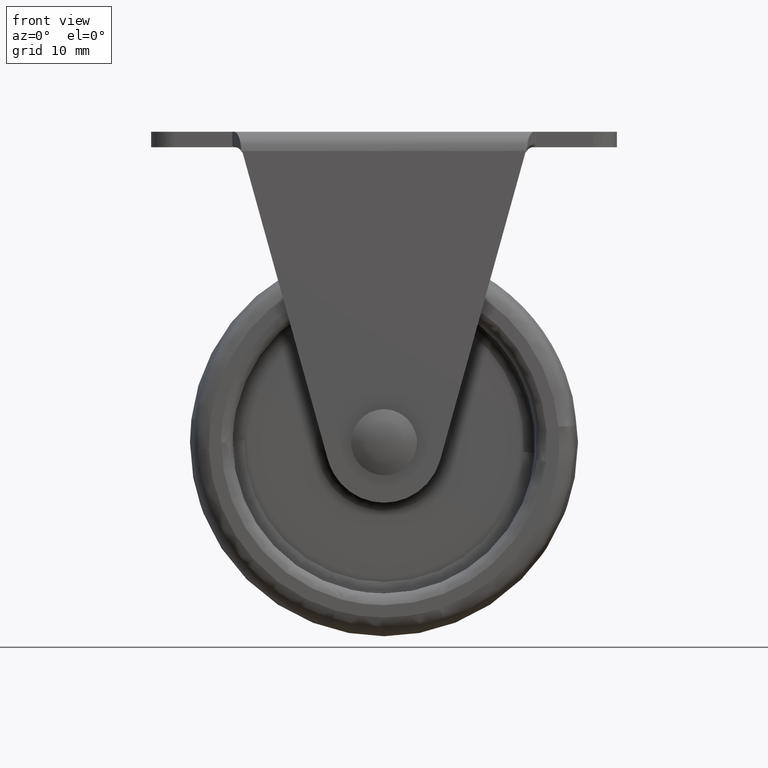
[diagram: clean part render]
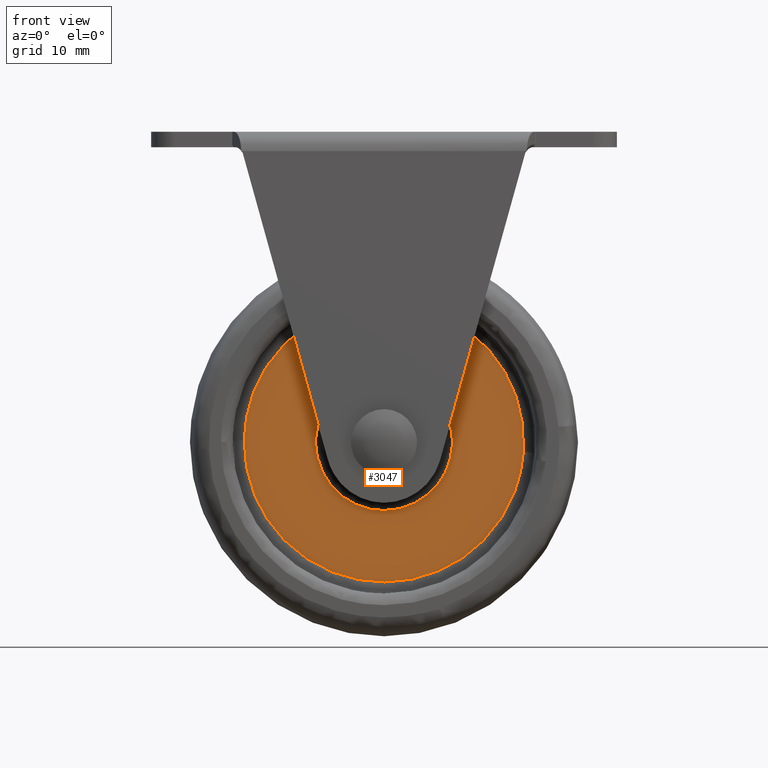
[diagram: same view with one face highlighted and labeled with its STEP entity id]
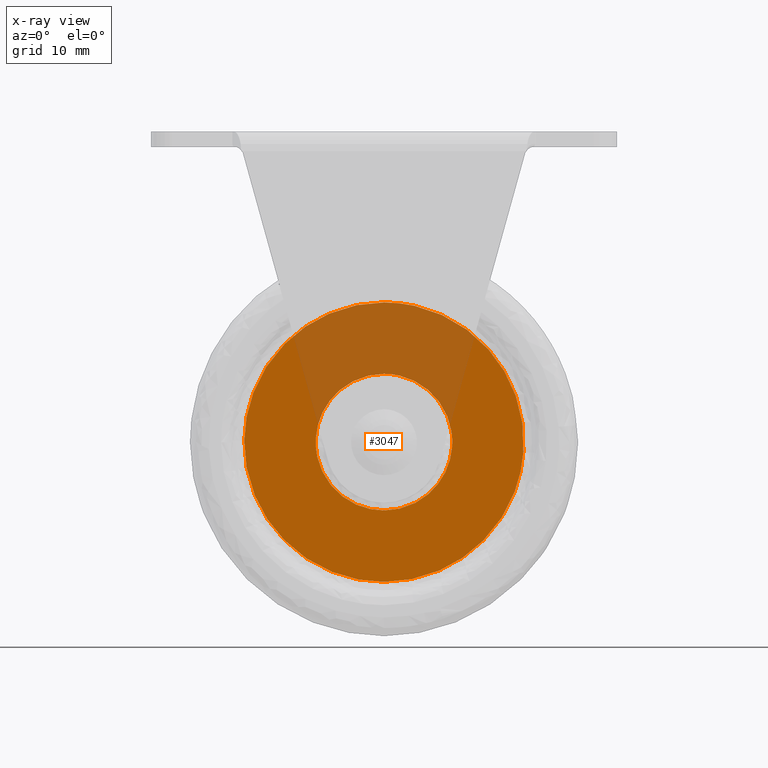
[diagram: x-ray of the same camera — body ghosted, the highlighted face saturated]
A machine part, front view. The second image highlights one B-rep face of the part: STEP entity #3047.
The next image is the same camera in x-ray: the body ghosted, the highlighted face saturated — about 28% of this face is hidden behind the body in this view.
In plain terms, the highlighted face is a freeform B-spline surface patch.
Its self-contained STEP definition (entity closure, byte-faithful):
#1392=CARTESIAN_POINT('',(-8.588241619073845,-3.0,-41.925785743784587));
#1393=VERTEX_POINT('',#1392);
#1407=CARTESIAN_POINT('',(0.0,-3.0,-48.801508102108151));
#1408=VERTEX_POINT('',#1407);
#1409=CARTESIAN_POINT('',(-8.588241619073845,-3.000000000000000,-41.925785743784601));
#1410=CARTESIAN_POINT('',(-7.046462909473995,-3.000000000000000,-48.801508102108137));
#1411=CARTESIAN_POINT('',(0.0,-3.0,-48.801508102108151));
#1419=(BOUNDED_CURVE()B_SPLINE_CURVE(2,(#1409,#1410,#1411),.UNSPECIFIED.,.F.,.U.)B_SPLINE_CURVE_WITH_KNOTS((3,3),(0.787436176732207,1.0),.UNSPECIFIED.)CURVE()GEOMETRIC_REPRESENTATION_ITEM()RATIONAL_B_SPLINE_CURVE((0.925416950434038,0.750965990399209,1.0))REPRESENTATION_ITEM(''));
#1420=EDGE_CURVE('',#1393,#1408,#1419,.T.);
#1422=CARTESIAN_POINT('',(8.684324331349085,-3.0,-38.568547672826973));
#1423=VERTEX_POINT('',#1422);
#1424=CARTESIAN_POINT('',(0.0,-3.0,-48.801508102108151));
#1425=CARTESIAN_POINT('',(8.801508102108150,-3.0,-48.801508102108144));
#1426=CARTESIAN_POINT('',(8.801508102108150,-3.0,-40.0));
#1427=CARTESIAN_POINT('',(8.801508102108150,-3.000000000000000,-39.279477296538268));
#1428=CARTESIAN_POINT('',(8.684324331349085,-3.000000000000000,-38.568547672826966));
#1436=(BOUNDED_CURVE()B_SPLINE_CURVE(2,(#1424,#1425,#1426,#1427,#1428),.UNSPECIFIED.,.F.,.U.)B_SPLINE_CURVE_WITH_KNOTS((3,2,3),(0.0,0.250000000000000,0.277993891205872),.UNSPECIFIED.)CURVE()GEOMETRIC_REPRESENTATION_ITEM()RATIONAL_B_SPLINE_CURVE((1.0,0.707106781186548,1.0,0.967203116390394,0.941751131914060))REPRESENTATION_ITEM(''));
#1437=EDGE_CURVE('',#1408,#1423,#1436,.T.);
#1489=CARTESIAN_POINT('',(0.0,-3.0,-31.198491897891849));
#1490=VERTEX_POINT('',#1489);
#1491=CARTESIAN_POINT('',(8.684324331349085,-3.000000000000000,-38.568547672826966));
#1492=CARTESIAN_POINT('',(7.469505183453082,-3.000000000000001,-31.198491897891849));
#1493=CARTESIAN_POINT('',(0.0,-3.0,-31.198491897891849));
#1501=(BOUNDED_CURVE()B_SPLINE_CURVE(2,(#1491,#1492,#1493),.UNSPECIFIED.,.F.,.U.)B_SPLINE_CURVE_WITH_KNOTS((3,3),(0.277993891205872,0.500000000000000),.UNSPECIFIED.)CURVE()GEOMETRIC_REPRESENTATION_ITEM()RATIONAL_B_SPLINE_CURVE((0.941751131914060,0.739903664796153,1.0))REPRESENTATION_ITEM(''));
#1502=EDGE_CURVE('',#1423,#1490,#1501,.T.);
#1504=CARTESIAN_POINT('',(0.0,-3.0,-31.198491897891849));
#1505=CARTESIAN_POINT('',(-8.801508102108150,-3.0,-31.198491897891849));
#1506=CARTESIAN_POINT('',(-8.801508102108150,-3.0,-40.0));
#1507=CARTESIAN_POINT('',(-8.801508102108151,-3.000000000000000,-40.974701712367263));
#1508=CARTESIAN_POINT('',(-8.588241619073845,-3.000000000000000,-41.925785743784594));
#1516=(BOUNDED_CURVE()B_SPLINE_CURVE(2,(#1504,#1505,#1506,#1507,#1508),.UNSPECIFIED.,.F.,.U.)B_SPLINE_CURVE_WITH_KNOTS((3,2,3),(0.500000000000000,0.750000000000000,0.787436176732208),.UNSPECIFIED.)CURVE()GEOMETRIC_REPRESENTATION_ITEM()RATIONAL_B_SPLINE_CURVE((1.0,0.707106781186548,1.0,0.956140790787338,0.925416950434036))REPRESENTATION_ITEM(''));
#1517=EDGE_CURVE('',#1490,#1393,#1516,.T.);
#1553=CARTESIAN_POINT('',(17.956182133700640,-3.0,-41.255198528857150));
#1554=VERTEX_POINT('',#1553);
#1555=CARTESIAN_POINT('',(0.0,-3.0,-22.0));
#1556=VERTEX_POINT('',#1555);
#1557=CARTESIAN_POINT('',(17.956182133700647,-3.0,-41.255198528857150));
#1558=CARTESIAN_POINT('',(18.0,-3.000000000000000,-40.628364085924126));
#1559=CARTESIAN_POINT('',(18.0,-3.0,-40.0));
#1560=CARTESIAN_POINT('',(18.000000000000007,-3.000000000000000,-22.000000000000007));
#1561=CARTESIAN_POINT('',(0.0,-3.0,-22.0));
#1569=(BOUNDED_CURVE()B_SPLINE_CURVE(2,(#1557,#1558,#1559,#1560,#1561),.UNSPECIFIED.,.F.,.U.)B_SPLINE_CURVE_WITH_KNOTS((3,2,3),(0.237833686531712,0.250000000000000,0.500000000000000),.UNSPECIFIED.)CURVE()GEOMETRIC_REPRESENTATION_ITEM()RATIONAL_B_SPLINE_CURVE((0.972879876379828,0.985746277148719,1.0,0.707106781186547,1.0))REPRESENTATION_ITEM(''));
#1570=EDGE_CURVE('',#1554,#1556,#1569,.T.);
#1589=CARTESIAN_POINT('',(-17.998578799165038,-3.0,-39.773811281915762));
#1590=VERTEX_POINT('',#1589);
#1604=CARTESIAN_POINT('',(0.0,-3.0,-22.0));
#1605=CARTESIAN_POINT('',(-17.775214738055237,-3.000000000000001,-22.000000000000011));
#1606=CARTESIAN_POINT('',(-17.998578799165038,-3.000000000000000,-39.773811281915769));
#1614=(BOUNDED_CURVE()B_SPLINE_CURVE(2,(#1604,#1605,#1606),.UNSPECIFIED.,.F.,.U.)B_SPLINE_CURVE_WITH_KNOTS((3,3),(0.500000000000000,0.747784295918994),.UNSPECIFIED.)CURVE()GEOMETRIC_REPRESENTATION_ITEM()RATIONAL_B_SPLINE_CURVE((1.0,0.709702639987444,0.994854295637718))REPRESENTATION_ITEM(''));
#1615=EDGE_CURVE('',#1556,#1590,#1614,.T.);
#1643=CARTESIAN_POINT('',(0.0,-3.0,-57.999999999999993));
#1644=VERTEX_POINT('',#1643);
#1645=CARTESIAN_POINT('',(0.0,-3.0,-57.999999999999993));
#1646=CARTESIAN_POINT('',(16.785663250464310,-3.000000000000000,-58.000000000000007));
#1647=CARTESIAN_POINT('',(17.956182133700647,-3.0,-41.255198528857150));
#1655=(BOUNDED_CURVE()B_SPLINE_CURVE(2,(#1645,#1646,#1647),.UNSPECIFIED.,.F.,.U.)B_SPLINE_CURVE_WITH_KNOTS((3,3),(0.0,0.237833686531712),.UNSPECIFIED.)CURVE()GEOMETRIC_REPRESENTATION_ITEM()RATIONAL_B_SPLINE_CURVE((1.0,0.721360504037829,0.972879876379828))REPRESENTATION_ITEM(''));
#1656=EDGE_CURVE('',#1644,#1554,#1655,.T.);
#1658=CARTESIAN_POINT('',(-17.998578799165038,-3.000000000000000,-39.773811281915769));
#1659=CARTESIAN_POINT('',(-18.000000000000004,-3.000000000000000,-39.886901176006035));
#1660=CARTESIAN_POINT('',(-18.0,-3.0,-40.0));
#1661=CARTESIAN_POINT('',(-18.000000000000007,-3.000000000000000,-57.999999999999993));
#1662=CARTESIAN_POINT('',(0.0,-3.0,-57.999999999999993));
#1670=(BOUNDED_CURVE()B_SPLINE_CURVE(2,(#1658,#1659,#1660,#1661,#1662),.UNSPECIFIED.,.F.,.U.)B_SPLINE_CURVE_WITH_KNOTS((3,2,3),(0.747784295918994,0.750000000000000,1.0),.UNSPECIFIED.)CURVE()GEOMETRIC_REPRESENTATION_ITEM()RATIONAL_B_SPLINE_CURVE((0.994854295637718,0.997404141199104,1.0,0.707106781186547,1.0))REPRESENTATION_ITEM(''));
#1671=EDGE_CURVE('',#1590,#1644,#1670,.T.);
#3030=CARTESIAN_POINT('',(-19.796605532330229,-3.0,-59.798199930225003));
#3031=CARTESIAN_POINT('',(-19.796605532330229,-3.0,-20.201799104179749));
#3032=CARTESIAN_POINT('',(19.795974403878141,-3.0,-59.798199930225003));
#3033=CARTESIAN_POINT('',(19.795974403878141,-3.0,-20.201799104179749));
#3034=B_SPLINE_SURFACE_WITH_KNOTS('',1,1,((#3030,#3032),(#3031,#3033)),.UNSPECIFIED.,.F.,.F.,.U.,(2,2),(2,2),(0.0,39.596400826045247),(0.0,39.592579936208367),.UNSPECIFIED.);
#3035=ORIENTED_EDGE('',*,*,#1656,.T.);
#3036=ORIENTED_EDGE('',*,*,#1570,.T.);
#3037=ORIENTED_EDGE('',*,*,#1615,.T.);
#3038=ORIENTED_EDGE('',*,*,#1671,.T.);
#3039=EDGE_LOOP('',(#3035,#3036,#3037,#3038));
#3040=FACE_OUTER_BOUND('',#3039,.T.);
#3041=ORIENTED_EDGE('',*,*,#1437,.F.);
#3042=ORIENTED_EDGE('',*,*,#1420,.F.);
#3043=ORIENTED_EDGE('',*,*,#1517,.F.);
#3044=ORIENTED_EDGE('',*,*,#1502,.F.);
#3045=EDGE_LOOP('',(#3041,#3042,#3043,#3044));
#3046=FACE_BOUND('',#3045,.T.);
#3047=ADVANCED_FACE('',(#3040,#3046),#3034,.F.);